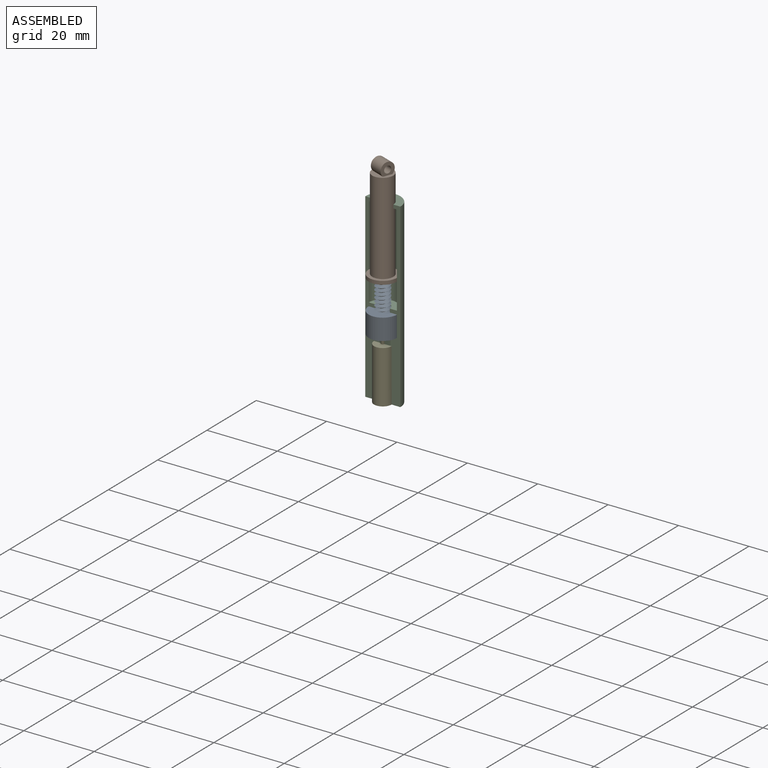
[diagram: assembled view]
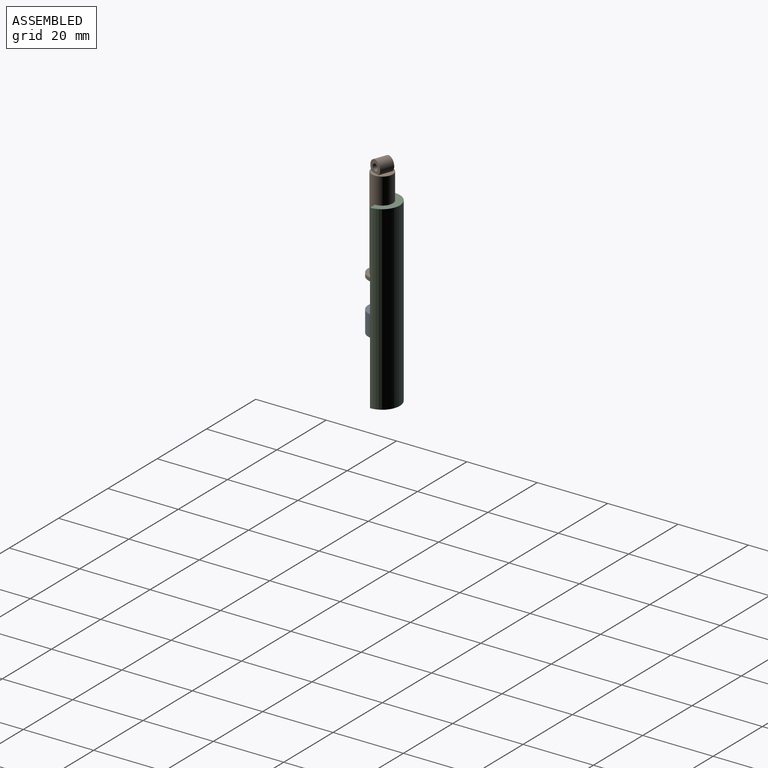
[diagram: assembled view, second angle]
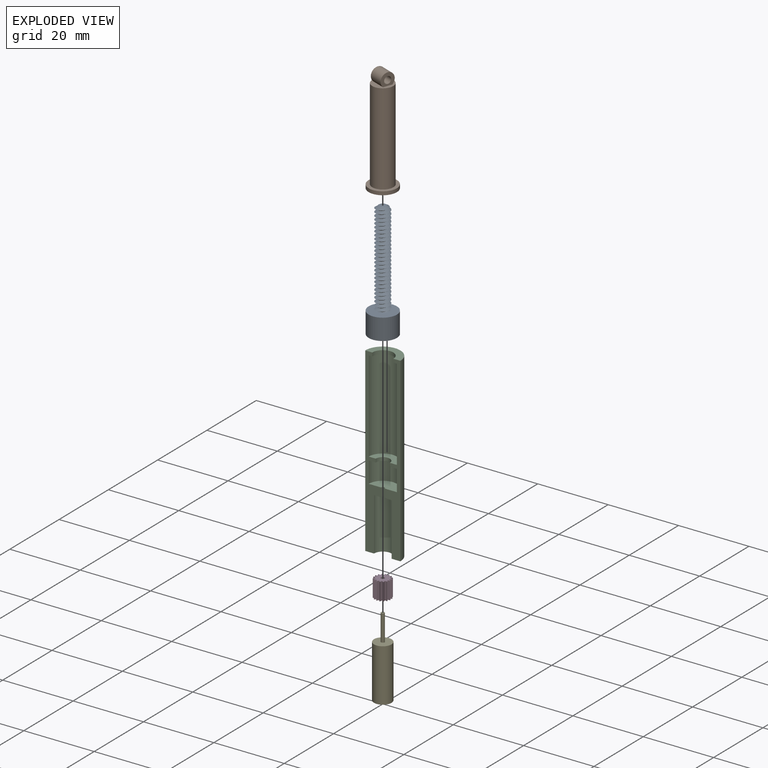
[diagram: exploded view]
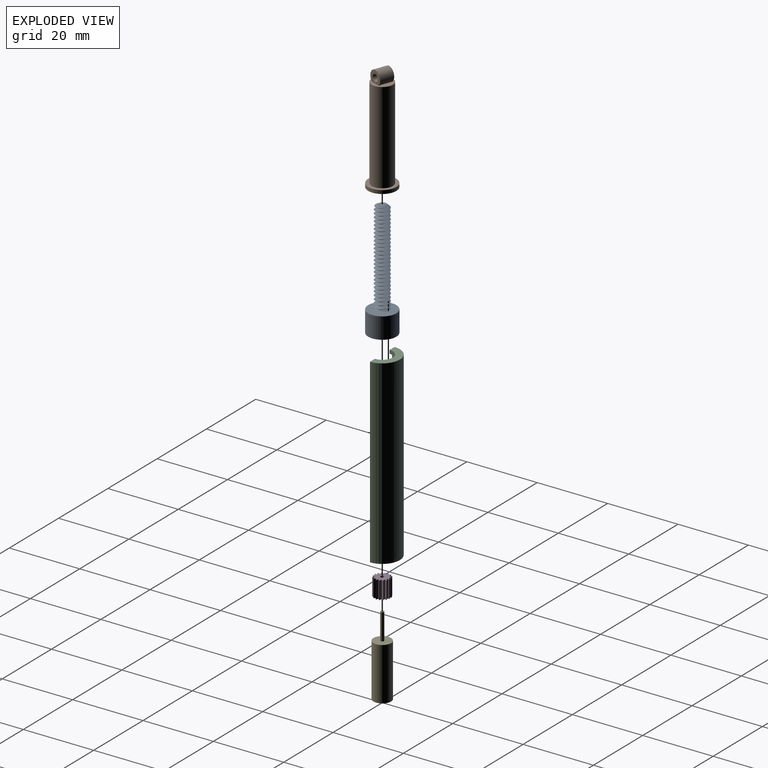
[diagram: exploded view, second angle]
ASSEMBLY  parts=5 mates=4
PART A: 122 faces, bbox 8.7x8.7x34.2 mm
  f0: plane 8x8mm, normal (0,0,-1), area 37.7mm2, adj f7,f8,f9,f10,f11,f12,f13,f14
  f1: cylinder r=2mm len=26.42mm, axis (0,0,-1), area -3.3mm2, adj f2,f3,f5,f6
  f2: bspline ~27.5x4.62mm, area 263.8mm2, adj f1,f3,f5,f6
  f3: bspline ~28x4.62mm, area 263.3mm2, adj f1,f2,f5,f6
  f4: plane 2x2mm, normal (0,0,1), area 3.1mm2, adj f5
  f5: cone r=1mm half-angle=60deg, axis (0,0,-1), area 5.5mm2, adj f1,f2,f3,f4
  f6: plane 8.68x8.68mm, normal (0,0,1), area 42.3mm2, adj f1,f2,f3,f7
  f7: cylinder r=4mm len=8mm, axis (0,0,-1), area 150.8mm2, adj f0,f6
  f8: cylinder r=0.38mm len=5mm, axis (0,0,-1), area 0.7mm2, adj f0,f9,f120,f121
  f9: plane 5x0.08mm, normal (-0.68,0.74,0), area 0.5mm2, adj f0,f8,f10,f121
  f10: cylinder r=0.38mm len=5mm, axis (0,0,-1), area 1.3mm2, adj f0,f9,f11,f121
  f11: cylinder r=0.38mm len=5mm, axis (0,0,-1), area 1.3mm2, adj f0,f10,f12,f121
  f12: plane 5x0.1mm, normal (0.94,-0.34,0), area 0.5mm2, adj f0,f11,f13,f121
  f13: cylinder r=0.38mm len=5mm, axis (0,0,-1), area 0.7mm2, adj f0,f12,f14,f121
  f14: cylinder r=0.2mm len=5mm, axis (0,0,-1), area 1.6mm2, adj f0,f13,f15,f121
  f15: cylinder r=0.38mm len=5mm, axis (0,0,-1), area 0.7mm2, adj f0,f14,f16,f121
  f16: plane 5x0.1mm, normal (-0.34,0.94,0), area 0.5mm2, adj f0,f15,f17,f121
  f17: cylinder r=0.38mm len=5mm, axis (0,0,-1), area 1.3mm2, adj f0,f16,f18,f121
  f18: cylinder r=0.38mm len=5mm, axis (0,0,-1), area 1.3mm2, adj f0,f17,f19,f121
  f19: plane 5x0.08mm, normal (0.74,-0.68,0), area 0.5mm2, adj f0,f18,f20,f121
  f20: cylinder r=0.38mm len=5mm, axis (0,0,-1), area 0.7mm2, adj f0,f19,f21,f121
  f21: cylinder r=0.2mm len=5mm, axis (0,0,-1), area 1.6mm2, adj f0,f20,f22,f121
  f22: cylinder r=0.38mm len=5mm, axis (0,0,-1), area 0.7mm2, adj f0,f21,f23,f121
  f23: plane 5x0.1mm, normal (0.04,1,0), area 0.5mm2, adj f0,f22,f24,f121
  f24: cylinder r=0.38mm len=5mm, axis (0,0,-1), area 1.3mm2, adj f0,f23,f25,f121
  f25: cylinder r=0.38mm len=5mm, axis (0,0,-1), area 1.3mm2, adj f0,f24,f26,f121
  f26: plane 5x0.09mm, normal (0.42,-0.91,0), area 0.5mm2, adj f0,f25,f27,f121
  f27: cylinder r=0.38mm len=5mm, axis (0,0,-1), area 0.7mm2, adj f0,f26,f28,f121
  f28: cylinder r=0.2mm len=5mm, axis (0,0,-1), area 1.6mm2, adj f0,f27,f29,f121
  f29: cylinder r=0.38mm len=5mm, axis (0,0,-1), area 0.7mm2, adj f0,f28,f30,f121
  f30: plane 5x0.09mm, normal (0.42,0.91,0), area 0.5mm2, adj f0,f29,f31,f121
  f31: cylinder r=0.38mm len=5mm, axis (0,0,-1), area 1.3mm2, adj f0,f30,f32,f121
  f32: cylinder r=0.38mm len=5mm, axis (0,0,-1), area 1.3mm2, adj f0,f31,f33,f121
  f33: plane 5x0.1mm, normal (0.04,-1,0), area 0.5mm2, adj f0,f32,f34,f121
  f34: cylinder r=0.38mm len=5mm, axis (0,0,-1), area 0.7mm2, adj f0,f33,f35,f121
  f35: cylinder r=0.2mm len=5mm, axis (0,0,-1), area 1.6mm2, adj f0,f34,f36,f121
  f36: cylinder r=0.38mm len=5mm, axis (0,0,-1), area 0.7mm2, adj f0,f35,f37,f121
  f37: plane 5x0.08mm, normal (0.74,0.68,0), area 0.5mm2, adj f0,f36,f38,f121
  f38: cylinder r=0.38mm len=5mm, axis (0,0,-1), area 1.3mm2, adj f0,f37,f39,f121
  f39: cylinder r=0.38mm len=5mm, axis (0,0,-1), area 1.3mm2, adj f0,f38,f40,f121
  f40: plane 5x0.1mm, normal (-0.34,-0.94,0), area 0.5mm2, adj f0,f39,f41,f121
  f41: cylinder r=0.38mm len=5mm, axis (0,0,-1), area 0.7mm2, adj f0,f40,f42,f121
  f42: cylinder r=0.2mm len=5mm, axis (0,0,-1), area 1.6mm2, adj f0,f41,f43,f121
  f43: cylinder r=0.38mm len=5mm, axis (0,0,-1), area 0.7mm2, adj f0,f42,f44,f121
  f44: plane 5x0.1mm, normal (0.94,0.34,0), area 0.5mm2, adj f0,f43,f45,f121
  f45: cylinder r=0.38mm len=5mm, axis (0,0,-1), area 1.3mm2, adj f0,f44,f46,f121
  f46: cylinder r=0.38mm len=5mm, axis (0,0,-1), area 1.3mm2, adj f0,f45,f47,f121
  f47: plane 5x0.08mm, normal (-0.68,-0.74,0), area 0.5mm2, adj f0,f46,f48,f121
  f48: cylinder r=0.38mm len=5mm, axis (0,0,-1), area 0.7mm2, adj f0,f47,f49,f121
  f49: cylinder r=0.2mm len=5mm, axis (0,0,-1), area 1.6mm2, adj f0,f48,f50,f121
  f50: cylinder r=0.38mm len=5mm, axis (0,0,-1), area 0.7mm2, adj f0,f49,f51,f121
  f51: plane 5x0.1mm, normal (1,-0.04,0), area 0.5mm2, adj f0,f50,f52,f121
  f52: cylinder r=0.38mm len=5mm, axis (0,0,-1), area 1.3mm2, adj f0,f51,f53,f121
  f53: cylinder r=0.38mm len=5mm, axis (0,0,-1), area 1.3mm2, adj f0,f52,f54,f121
  f54: plane 5x0.09mm, normal (-0.91,-0.42,0), area 0.5mm2, adj f0,f53,f55,f121
  f55: cylinder r=0.38mm len=5mm, axis (0,0,-1), area 0.7mm2, adj f0,f54,f56,f121
  f56: cylinder r=0.2mm len=5mm, axis (0,0,-1), area 1.6mm2, adj f0,f55,f57,f121
  f57: cylinder r=0.38mm len=5mm, axis (0,0,-1), area 0.7mm2, adj f0,f56,f58,f121
  f58: plane 5x0.09mm, normal (0.91,-0.42,0), area 0.5mm2, adj f0,f57,f59,f121
  f59: cylinder r=0.38mm len=5mm, axis (0,0,-1), area 1.3mm2, adj f0,f58,f60,f121
  f60: cylinder r=0.38mm len=5mm, axis (0,0,-1), area 1.3mm2, adj f0,f59,f61,f121
  f61: plane 5x0.1mm, normal (-1,-0.04,0), area 0.5mm2, adj f0,f60,f62,f121
  f62: cylinder r=0.38mm len=5mm, axis (0,0,-1), area 0.7mm2, adj f0,f61,f63,f121
  f63: cylinder r=0.2mm len=5mm, axis (0,0,-1), area 1.6mm2, adj f0,f62,f64,f121
  f64: cylinder r=0.38mm len=5mm, axis (0,0,-1), area 0.7mm2, adj f0,f63,f65,f121
  f65: plane 5x0.08mm, normal (0.68,-0.74,0), area 0.5mm2, adj f0,f64,f66,f121
  f66: cylinder r=0.38mm len=5mm, axis (0,0,-1), area 1.3mm2, adj f0,f65,f67,f121
  f67: cylinder r=0.38mm len=5mm, axis (0,0,-1), area 1.3mm2, adj f0,f66,f68,f121
  f68: plane 5x0.1mm, normal (-0.94,0.34,0), area 0.5mm2, adj f0,f67,f69,f121
  f69: cylinder r=0.38mm len=5mm, axis (0,0,-1), area 0.7mm2, adj f0,f68,f70,f121
  f70: cylinder r=0.2mm len=5mm, axis (0,0,-1), area 1.6mm2, adj f0,f69,f71,f121
  f71: cylinder r=0.38mm len=5mm, axis (0,0,-1), area 0.7mm2, adj f0,f70,f72,f121
  f72: plane 5x0.1mm, normal (0.34,-0.94,0), area 0.5mm2, adj f0,f71,f73,f121
  f73: cylinder r=0.38mm len=5mm, axis (0,0,-1), area 1.3mm2, adj f0,f72,f74,f121
  f74: cylinder r=0.38mm len=5mm, axis (0,0,-1), area 1.3mm2, adj f0,f73,f75,f121
  f75: plane 5x0.08mm, normal (-0.74,0.68,0), area 0.5mm2, adj f0,f74,f76,f121
  f76: cylinder r=0.38mm len=5mm, axis (0,0,-1), area 0.7mm2, adj f0,f75,f77,f121
  f77: cylinder r=0.2mm len=5mm, axis (0,0,-1), area 1.6mm2, adj f0,f76,f78,f121
  f78: cylinder r=0.38mm len=5mm, axis (0,0,-1), area 0.7mm2, adj f0,f77,f79,f121
  f79: plane 5x0.1mm, normal (-0.04,-1,0), area 0.5mm2, adj f0,f78,f80,f121
  f80: cylinder r=0.38mm len=5mm, axis (0,0,-1), area 1.3mm2, adj f0,f79,f81,f121
  f81: cylinder r=0.38mm len=5mm, axis (0,0,-1), area 1.3mm2, adj f0,f80,f82,f121
  f82: plane 5x0.09mm, normal (-0.42,0.91,0), area 0.5mm2, adj f0,f81,f83,f121
  f83: cylinder r=0.38mm len=5mm, axis (0,0,-1), area 0.7mm2, adj f0,f82,f84,f121
  f84: cylinder r=0.2mm len=5mm, axis (0,0,-1), area 1.6mm2, adj f0,f83,f85,f121
  f85: cylinder r=0.38mm len=5mm, axis (0,0,-1), area 0.7mm2, adj f0,f84,f86,f121
  f86: plane 5x0.09mm, normal (-0.42,-0.91,0), area 0.5mm2, adj f0,f85,f87,f121
  f87: cylinder r=0.38mm len=5mm, axis (0,0,-1), area 1.3mm2, adj f0,f86,f88,f121
  f88: cylinder r=0.38mm len=5mm, axis (0,0,-1), area 1.3mm2, adj f0,f87,f89,f121
  f89: plane 5x0.1mm, normal (-0.04,1,0), area 0.5mm2, adj f0,f88,f90,f121
  f90: cylinder r=0.38mm len=5mm, axis (0,0,-1), area 0.7mm2, adj f0,f89,f91,f121
  f91: cylinder r=0.2mm len=5mm, axis (0,0,-1), area 1.6mm2, adj f0,f90,f92,f121
  f92: cylinder r=0.38mm len=5mm, axis (0,0,-1), area 0.7mm2, adj f0,f91,f93,f121
  f93: plane 5x0.08mm, normal (-0.74,-0.68,0), area 0.5mm2, adj f0,f92,f94,f121
  f94: cylinder r=0.38mm len=5mm, axis (0,0,-1), area 1.3mm2, adj f0,f93,f95,f121
  f95: cylinder r=0.38mm len=5mm, axis (0,0,-1), area 1.3mm2, adj f0,f94,f96,f121
  f96: plane 5x0.1mm, normal (0.34,0.94,0), area 0.5mm2, adj f0,f95,f97,f121
  f97: cylinder r=0.38mm len=5mm, axis (0,0,-1), area 0.7mm2, adj f0,f96,f98,f121
  f98: cylinder r=0.2mm len=5mm, axis (0,0,-1), area 1.6mm2, adj f0,f97,f99,f121
  f99: cylinder r=0.38mm len=5mm, axis (0,0,-1), area 0.7mm2, adj f0,f98,f100,f121
  f100: plane 5x0.1mm, normal (-0.94,-0.34,0), area 0.5mm2, adj f0,f99,f101,f121
  f101: cylinder r=0.38mm len=5mm, axis (0,0,-1), area 1.3mm2, adj f0,f100,f102,f121
  f102: cylinder r=0.38mm len=5mm, axis (0,0,-1), area 1.3mm2, adj f0,f101,f103,f121
  f103: plane 5x0.08mm, normal (0.68,0.74,0), area 0.5mm2, adj f0,f102,f104,f121
  f104: cylinder r=0.38mm len=5mm, axis (0,0,-1), area 0.7mm2, adj f0,f103,f105,f121
  f105: cylinder r=0.2mm len=5mm, axis (0,0,-1), area 1.6mm2, adj f0,f104,f106,f121
  f106: cylinder r=0.38mm len=5mm, axis (0,0,-1), area 0.7mm2, adj f0,f105,f107,f121
  f107: plane 5x0.1mm, normal (-1,0.04,0), area 0.5mm2, adj f0,f106,f108,f121
  f108: cylinder r=0.38mm len=5mm, axis (0,0,-1), area 1.3mm2, adj f0,f107,f109,f121
  f109: cylinder r=0.38mm len=5mm, axis (0,0,-1), area 1.3mm2, adj f0,f108,f110,f121
  f110: plane 5x0.09mm, normal (0.91,0.42,0), area 0.5mm2, adj f0,f109,f111,f121
  f111: cylinder r=0.38mm len=5mm, axis (0,0,-1), area 0.7mm2, adj f0,f110,f112,f121
  f112: cylinder r=0.2mm len=5mm, axis (0,0,-1), area 1.6mm2, adj f0,f111,f113,f121
  f113: cylinder r=0.38mm len=5mm, axis (0,0,-1), area 0.8mm2, adj f0,f112,f114,f121
  f114: cylinder r=2mm len=5mm, axis (0,0,-1), area 0mm2, adj f0,f113,f115,f121
  f115: plane 5x0.07mm, normal (-0.91,0.42,0), area 0.4mm2, adj f0,f114,f116,f121
  f116: cylinder r=0.38mm len=5mm, axis (0,0,-1), area 1.3mm2, adj f0,f115,f117,f121
  f117: cylinder r=0.38mm len=5mm, axis (0,0,-1), area 1.3mm2, adj f0,f116,f118,f121
  f118: plane 5x0.1mm, normal (1,0.04,0), area 0.5mm2, adj f0,f117,f119,f121
  f119: cylinder r=0.38mm len=5mm, axis (0,0,-1), area 0.7mm2, adj f0,f118,f120,f121
  f120: cylinder r=0.2mm len=5mm, axis (0,0,-1), area 1.6mm2, adj f0,f8,f119,f121
  f121: plane 4.48x4.48mm, normal (0,0,-1), area 12.5mm2, adj f8,f9,f10,f11,f12,f13,f14,f15
PART B: 14 faces, bbox 8x8x31.2 mm
  f0: cylinder r=2mm len=26mm, axis (0,0,-1), area 40.1mm2, adj f3,f5,f11,f12,f13
  f1: cylinder r=4mm len=8mm, axis (0,0,-1), area 25.1mm2, adj f2,f3
  f2: plane 8x8mm, normal (0,0,1), area 22mm2, adj f1,f4
  f3: plane 8x8mm, normal (0,0,-1), area 42.3mm2, adj f0,f1,f12,f13
  f4: cylinder r=3mm len=26mm, axis (0,0,-1), area 490.1mm2, adj f2,f6
  f5: plane 4x4mm, normal (0,0,-1), area 12.6mm2, adj f0
  f6: plane 6x6mm, normal (0,0,1), area 17.7mm2, adj f4,f8,f9,f10
  f7: cylinder r=1mm len=4mm, axis (0,1,0), area 25.1mm2, adj f9,f10
  f8: cylinder r=2mm len=4mm, axis (0,1,0), area 38.7mm2, adj f6,f9,f10
  f9: plane 4x3.5mm, normal (0,-1,0), area 8.5mm2, adj f6,f7,f8
  f10: plane 4x3.5mm, normal (0,1,0), area 8.5mm2, adj f6,f7,f8
  f11: plane 1x0.87mm, normal (0,1,0), area 0.4mm2, adj f0,f12,f13
  f12: bspline ~26.5x4.62mm, area 252.8mm2, adj f0,f3,f11,f13
  f13: bspline ~26.17x4.62mm, area 250.6mm2, adj f0,f3,f11,f12
PART C: 16 faces, bbox 10x5x51.5 mm
  f0: plane 8x4mm, normal (0,0,-1), area 11mm2, adj f1,f13,f14,f15
  f1: cylinder r=3mm len=6mm, axis (0,0,1), area 9.4mm2, adj f0,f2,f14,f15
  f2: plane 10x5mm, normal (0,0,1), area 25.1mm2, adj f1,f3,f14,f15
  f3: cylinder r=5mm len=51.5mm, axis (0,0,1), area 809mm2, adj f2,f4,f14,f15
  f4: plane 10x5mm, normal (0,0,-1), area 29.5mm2, adj f3,f5,f14,f15
  f5: cylinder r=2.5mm len=15mm, axis (0,0,1), area 117.8mm2, adj f4,f6,f14,f15
  f6: plane 5x2.5mm, normal (0,0,-1), area 9.4mm2, adj f5,f7,f14,f15
  f7: cylinder r=0.5mm len=2.5mm, axis (0,0,1), area 3.9mm2, adj f6,f8,f14,f15
  f8: plane 8x4mm, normal (0,0,1), area 24.7mm2, adj f7,f9,f14,f15
  f9: cylinder r=4mm len=8mm, axis (0,0,1), area 75.4mm2, adj f8,f10,f14,f15
  f10: plane 8x4mm, normal (0,0,-1), area 18.8mm2, adj f9,f11,f14,f15
  f11: cylinder r=2mm len=4mm, axis (0,0,1), area 6.3mm2, adj f10,f12,f14,f15
  f12: plane 8x4mm, normal (0,0,1), area 18.8mm2, adj f11,f13,f14,f15
  f13: cylinder r=4mm len=26mm, axis (0,0,1), area 326.7mm2, adj f0,f12,f14,f15
  f14: plane 51.5x4.5mm, normal (0,-1,0), area 85.8mm2, adj f0,f1,f2,f3,f4,f5,f6,f7
  f15: plane 51.5x4.5mm, normal (0,-1,0), area 85.8mm2, adj f0,f1,f2,f3,f4,f5,f6,f7
PART D: 115 faces, bbox 4.7x4.7x5 mm
  f0: plane 5x0.17mm, normal (-0.06,1,0), area 0.9mm2, adj f1,f111,f113,f114
  f1: cylinder r=0.38mm len=5mm, axis (0,0,-1), area 0.7mm2, adj f0,f2,f113,f114
  f2: cylinder r=0.2mm len=5mm, axis (0,0,-1), area 1.6mm2, adj f1,f3,f113,f114
  f3: cylinder r=0.38mm len=5mm, axis (0,0,-1), area 0.7mm2, adj f2,f4,f113,f114
  f4: plane 5x0.14mm, normal (0.8,-0.6,0), area 0.9mm2, adj f3,f5,f113,f114
  f5: cylinder r=0.38mm len=5mm, axis (0,0,-1), area 1.2mm2, adj f4,f6,f113,f114
  f6: cylinder r=0.38mm len=5mm, axis (0,0,-1), area 1.2mm2, adj f5,f7,f113,f114
  f7: plane 5x0.16mm, normal (-0.44,0.9,0), area 0.9mm2, adj f6,f8,f113,f114
  f8: cylinder r=0.38mm len=5mm, axis (0,0,-1), area 0.7mm2, adj f7,f9,f113,f114
  f9: cylinder r=0.2mm len=5mm, axis (0,0,-1), area 1.6mm2, adj f8,f10,f113,f114
  f10: cylinder r=0.38mm len=5mm, axis (0,0,-1), area 0.7mm2, adj f9,f11,f113,f114
  f11: plane 5x0.17mm, normal (0.97,-0.24,0), area 0.9mm2, adj f10,f12,f113,f114
  f12: cylinder r=0.38mm len=5mm, axis (0,0,-1), area 1.2mm2, adj f11,f13,f113,f114
  f13: cylinder r=0.38mm len=5mm, axis (0,0,-1), area 1.2mm2, adj f12,f14,f113,f114
  f14: plane 5x0.13mm, normal (-0.75,0.66,0), area 0.9mm2, adj f13,f15,f113,f114
  f15: cylinder r=0.38mm len=5mm, axis (0,0,-1), area 0.7mm2, adj f14,f16,f113,f114
  f16: cylinder r=0.2mm len=5mm, axis (0,0,-1), area 1.6mm2, adj f15,f17,f113,f114
  f17: cylinder r=0.38mm len=5mm, axis (0,0,-1), area 0.7mm2, adj f16,f18,f113,f114
  f18: plane 5x0.17mm, normal (0.99,0.15,0), area 0.9mm2, adj f17,f19,f113,f114
  f19: cylinder r=0.38mm len=5mm, axis (0,0,-1), area 1.2mm2, adj f18,f20,f113,f114
  f20: cylinder r=0.38mm len=5mm, axis (0,0,-1), area 1.2mm2, adj f19,f21,f113,f114
  f21: plane 5x0.16mm, normal (-0.94,0.33,0), area 0.9mm2, adj f20,f22,f113,f114
  f22: cylinder r=0.38mm len=5mm, axis (0,0,-1), area 0.7mm2, adj f21,f23,f113,f114
  f23: cylinder r=0.2mm len=5mm, axis (0,0,-1), area 1.6mm2, adj f22,f24,f113,f114
  f24: cylinder r=0.38mm len=5mm, axis (0,0,-1), area 0.7mm2, adj f23,f25,f113,f114
  f25: plane 5x0.15mm, normal (0.86,0.51,0), area 0.9mm2, adj f24,f26,f113,f114
  f26: cylinder r=0.38mm len=5mm, axis (0,0,-1), area 1.2mm2, adj f25,f27,f113,f114
  f27: cylinder r=0.38mm len=5mm, axis (0,0,-1), area 1.2mm2, adj f26,f28,f113,f114
  f28: plane 5x0.17mm, normal (-1,-0.06,0), area 0.9mm2, adj f27,f29,f113,f114
  f29: cylinder r=0.38mm len=5mm, axis (0,0,-1), area 0.7mm2, adj f28,f30,f113,f114
  f30: cylinder r=0.2mm len=5mm, axis (0,0,-1), area 1.6mm2, adj f29,f31,f113,f114
  f31: cylinder r=0.38mm len=5mm, axis (0,0,-1), area 0.7mm2, adj f30,f32,f113,f114
  f32: plane 5x0.14mm, normal (0.6,0.8,0), area 0.9mm2, adj f31,f33,f113,f114
  f33: cylinder r=0.38mm len=5mm, axis (0,0,-1), area 1.2mm2, adj f32,f34,f113,f114
  f34: cylinder r=0.38mm len=5mm, axis (0,0,-1), area 1.2mm2, adj f33,f35,f113,f114
  f35: plane 5x0.16mm, normal (-0.9,-0.44,0), area 0.9mm2, adj f34,f36,f113,f114
  f36: cylinder r=0.38mm len=5mm, axis (0,0,-1), area 0.7mm2, adj f35,f37,f113,f114
  f37: cylinder r=0.2mm len=5mm, axis (0,0,-1), area 1.6mm2, adj f36,f38,f113,f114
  f38: cylinder r=0.38mm len=5mm, axis (0,0,-1), area 0.7mm2, adj f37,f39,f113,f114
  f39: plane 5x0.17mm, normal (0.24,0.97,0), area 0.9mm2, adj f38,f40,f113,f114
  f40: cylinder r=0.38mm len=5mm, axis (0,0,-1), area 1.2mm2, adj f39,f41,f113,f114
  f41: cylinder r=0.38mm len=5mm, axis (0,0,-1), area 1.2mm2, adj f40,f42,f113,f114
  f42: plane 5x0.13mm, normal (-0.66,-0.75,0), area 0.9mm2, adj f41,f43,f113,f114
  f43: cylinder r=0.38mm len=5mm, axis (0,0,-1), area 0.7mm2, adj f42,f44,f113,f114
  f44: cylinder r=0.2mm len=5mm, axis (0,0,-1), area 1.6mm2, adj f43,f45,f113,f114
  f45: cylinder r=0.38mm len=5mm, axis (0,0,-1), area 0.7mm2, adj f44,f46,f113,f114
  f46: plane 5x0.17mm, normal (-0.15,0.99,0), area 0.9mm2, adj f45,f47,f113,f114
  f47: cylinder r=0.38mm len=5mm, axis (0,0,-1), area 1.2mm2, adj f46,f48,f113,f114
  f48: cylinder r=0.38mm len=5mm, axis (0,0,-1), area 1.2mm2, adj f47,f49,f113,f114
  f49: plane 5x0.16mm, normal (-0.33,-0.94,0), area 0.9mm2, adj f48,f50,f113,f114
  f50: cylinder r=0.38mm len=5mm, axis (0,0,-1), area 0.7mm2, adj f49,f51,f113,f114
  f51: cylinder r=0.2mm len=5mm, axis (0,0,-1), area 1.6mm2, adj f50,f52,f113,f114
  f52: cylinder r=0.38mm len=5mm, axis (0,0,-1), area 0.7mm2, adj f51,f53,f113,f114
  f53: plane 5x0.15mm, normal (-0.51,0.86,0), area 0.9mm2, adj f52,f54,f113,f114
  f54: cylinder r=0.38mm len=5mm, axis (0,0,-1), area 1.2mm2, adj f53,f55,f113,f114
  f55: cylinder r=0.38mm len=5mm, axis (0,0,-1), area 1.2mm2, adj f54,f56,f113,f114
  f56: plane 5x0.17mm, normal (0.06,-1,0), area 0.9mm2, adj f55,f57,f113,f114
  f57: cylinder r=0.38mm len=5mm, axis (0,0,-1), area 0.7mm2, adj f56,f58,f113,f114
  f58: cylinder r=0.2mm len=5mm, axis (0,0,-1), area 1.6mm2, adj f57,f59,f113,f114
  f59: cylinder r=0.38mm len=5mm, axis (0,0,-1), area 0.7mm2, adj f58,f60,f113,f114
  f60: plane 5x0.14mm, normal (-0.8,0.6,0), area 0.9mm2, adj f59,f61,f113,f114
  f61: cylinder r=0.38mm len=5mm, axis (0,0,-1), area 1.2mm2, adj f60,f62,f113,f114
  f62: cylinder r=0.38mm len=5mm, axis (0,0,-1), area 1.2mm2, adj f61,f63,f113,f114
  f63: plane 5x0.16mm, normal (0.44,-0.9,0), area 0.9mm2, adj f62,f64,f113,f114
  f64: cylinder r=0.38mm len=5mm, axis (0,0,-1), area 0.7mm2, adj f63,f65,f113,f114
  f65: cylinder r=0.2mm len=5mm, axis (0,0,-1), area 1.6mm2, adj f64,f66,f113,f114
  f66: cylinder r=0.38mm len=5mm, axis (0,0,-1), area 0.7mm2, adj f65,f67,f113,f114
  f67: plane 5x0.17mm, normal (-0.97,0.24,0), area 0.9mm2, adj f66,f68,f113,f114
  f68: cylinder r=0.38mm len=5mm, axis (0,0,-1), area 1.2mm2, adj f67,f69,f113,f114
  f69: cylinder r=0.38mm len=5mm, axis (0,0,-1), area 1.2mm2, adj f68,f70,f113,f114
  f70: plane 5x0.13mm, normal (0.75,-0.66,0), area 0.9mm2, adj f69,f71,f113,f114
  f71: cylinder r=0.38mm len=5mm, axis (0,0,-1), area 0.7mm2, adj f70,f72,f113,f114
  f72: cylinder r=0.2mm len=5mm, axis (0,0,-1), area 1.6mm2, adj f71,f73,f113,f114
  f73: cylinder r=0.38mm len=5mm, axis (0,0,-1), area 0.7mm2, adj f72,f74,f113,f114
  f74: plane 5x0.17mm, normal (-0.99,-0.15,0), area 0.9mm2, adj f73,f75,f113,f114
  f75: cylinder r=0.38mm len=5mm, axis (0,0,-1), area 1.2mm2, adj f74,f76,f113,f114
  f76: cylinder r=0.38mm len=5mm, axis (0,0,-1), area 1.2mm2, adj f75,f77,f113,f114
  f77: plane 5x0.16mm, normal (0.94,-0.33,0), area 0.9mm2, adj f76,f78,f113,f114
  f78: cylinder r=0.38mm len=5mm, axis (0,0,-1), area 0.7mm2, adj f77,f79,f113,f114
  f79: cylinder r=0.2mm len=5mm, axis (0,0,-1), area 1.6mm2, adj f78,f80,f113,f114
  f80: cylinder r=0.38mm len=5mm, axis (0,0,-1), area 0.7mm2, adj f79,f81,f113,f114
  f81: plane 5x0.15mm, normal (-0.86,-0.51,0), area 0.9mm2, adj f80,f82,f113,f114
  f82: cylinder r=0.38mm len=5mm, axis (0,0,-1), area 1.2mm2, adj f81,f83,f113,f114
  f83: cylinder r=0.38mm len=5mm, axis (0,0,-1), area 1.2mm2, adj f82,f84,f113,f114
  f84: plane 5x0.17mm, normal (1,0.06,0), area 0.9mm2, adj f83,f85,f113,f114
  f85: cylinder r=0.38mm len=5mm, axis (0,0,-1), area 0.7mm2, adj f84,f86,f113,f114
  f86: cylinder r=0.2mm len=5mm, axis (0,0,-1), area 1.6mm2, adj f85,f87,f113,f114
  f87: cylinder r=0.38mm len=5mm, axis (0,0,-1), area 0.7mm2, adj f86,f88,f113,f114
  f88: plane 5x0.14mm, normal (-0.6,-0.8,0), area 0.9mm2, adj f87,f89,f113,f114
  f89: cylinder r=0.38mm len=5mm, axis (0,0,-1), area 1.2mm2, adj f88,f90,f113,f114
  f90: cylinder r=0.38mm len=5mm, axis (0,0,-1), area 1.2mm2, adj f89,f91,f113,f114
  f91: plane 5x0.16mm, normal (0.9,0.44,0), area 0.9mm2, adj f90,f92,f113,f114
  f92: cylinder r=0.38mm len=5mm, axis (0,0,-1), area 0.7mm2, adj f91,f93,f113,f114
  f93: cylinder r=0.2mm len=5mm, axis (0,0,-1), area 1.6mm2, adj f92,f94,f113,f114
  f94: cylinder r=0.38mm len=5mm, axis (0,0,-1), area 0.7mm2, adj f93,f95,f113,f114
  f95: plane 5x0.17mm, normal (-0.24,-0.97,0), area 0.9mm2, adj f94,f96,f113,f114
  f96: cylinder r=0.38mm len=5mm, axis (0,0,-1), area 1.2mm2, adj f95,f97,f113,f114
  f97: cylinder r=0.38mm len=5mm, axis (0,0,-1), area 1.2mm2, adj f96,f98,f113,f114
  f98: plane 5x0.13mm, normal (0.66,0.75,0), area 0.9mm2, adj f97,f99,f113,f114
  f99: cylinder r=0.38mm len=5mm, axis (0,0,-1), area 0.7mm2, adj f98,f100,f113,f114
  f100: cylinder r=0.2mm len=5mm, axis (0,0,-1), area 1.6mm2, adj f99,f101,f113,f114
  f101: cylinder r=0.38mm len=5mm, axis (0,0,-1), area 0.7mm2, adj f100,f102,f113,f114
  f102: plane 5x0.17mm, normal (0.15,-0.99,0), area 0.9mm2, adj f101,f103,f113,f114
  f103: cylinder r=0.38mm len=5mm, axis (0,0,-1), area 1.2mm2, adj f102,f104,f113,f114
  f104: cylinder r=0.38mm len=5mm, axis (0,0,-1), area 1.2mm2, adj f103,f105,f113,f114
  f105: plane 5x0.16mm, normal (0.33,0.94,0), area 0.9mm2, adj f104,f106,f113,f114
  f106: cylinder r=0.38mm len=5mm, axis (0,0,-1), area 0.7mm2, adj f105,f107,f113,f114
  f107: cylinder r=0.2mm len=5mm, axis (0,0,-1), area 1.6mm2, adj f106,f108,f113,f114
  f108: cylinder r=0.38mm len=5mm, axis (0,0,-1), area 0.7mm2, adj f107,f109,f113,f114
  f109: plane 5x0.15mm, normal (0.51,-0.86,0), area 0.9mm2, adj f108,f110,f113,f114
  f110: cylinder r=0.38mm len=5mm, axis (0,0,-1), area 1.2mm2, adj f109,f111,f113,f114
  f111: cylinder r=0.38mm len=5mm, axis (0,0,-1), area 1.2mm2, adj f0,f110,f113,f114
  f112: cylinder r=0.5mm len=5mm, axis (0,0,-1), area 15.7mm2, adj f113,f114
  f113: plane 4.66x4.66mm, normal (0,0,1), area 11.9mm2, adj f0,f1,f2,f3,f4,f5,f6,f7
  f114: plane 4.66x4.66mm, normal (0,0,-1), area 11.9mm2, adj f0,f1,f2,f3,f4,f5,f6,f7
PART E: 5 faces, bbox 5x5x22.5 mm
  f0: cylinder r=2.5mm len=15mm, axis (0,0,-1), area 235.6mm2, adj f1,f2
  f1: plane 5x5mm, normal (0,0,1), area 18.8mm2, adj f0,f3
  f2: plane 5x5mm, normal (0,0,-1), area 19.6mm2, adj f0
  f3: cylinder r=0.5mm len=7.5mm, axis (0,0,-1), area 23.6mm2, adj f1,f4
  f4: plane 1x1mm, normal (0,0,1), area 0.8mm2, adj f3
PLACE A rot(axis=(0,0,1),90deg) t=(0,0,17.5)mm
PLACE B rot(axis=(0,0,-1),110.3deg) t=(0,0,31.94)mm
PLACE C at identity
PLACE D t=(0,0,17.5)mm
PLACE E at identity
MATE cylindrical B.f1 <-> A.f7  axis (0,0,-1) through (0,0,31.94)mm
MATE fastened E.f3 <-> A.f114  axis (0,0,1) through (0,0,22.5)mm
MATE fastened C.f1 <-> A.f7  axis (0,0,1) through (0,0,17.5)mm
MATE revolute E.f3 <-> D.f112  axis (0,0,1) through (0,0,22.5)mm
